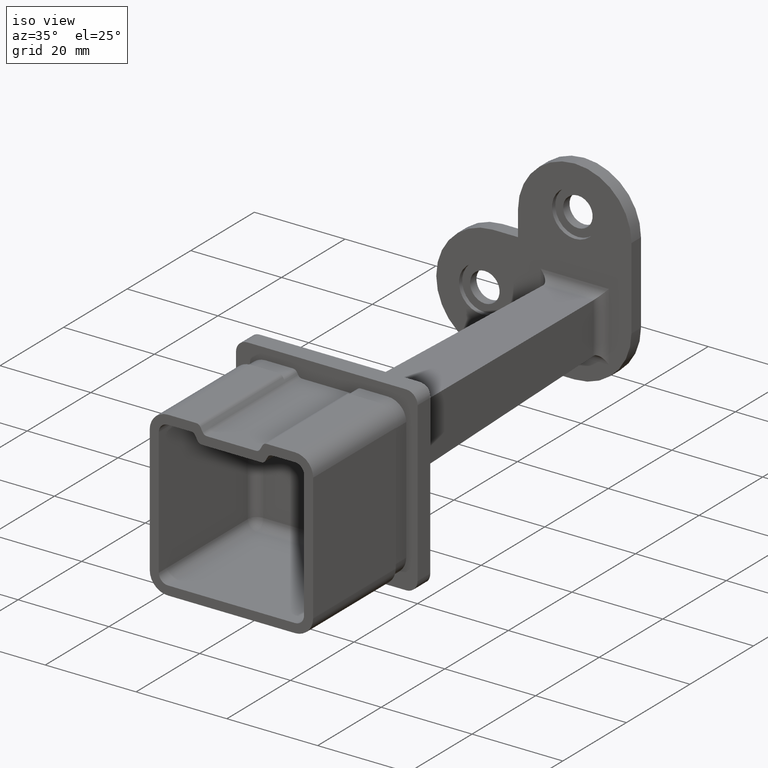
[diagram: clean part render]
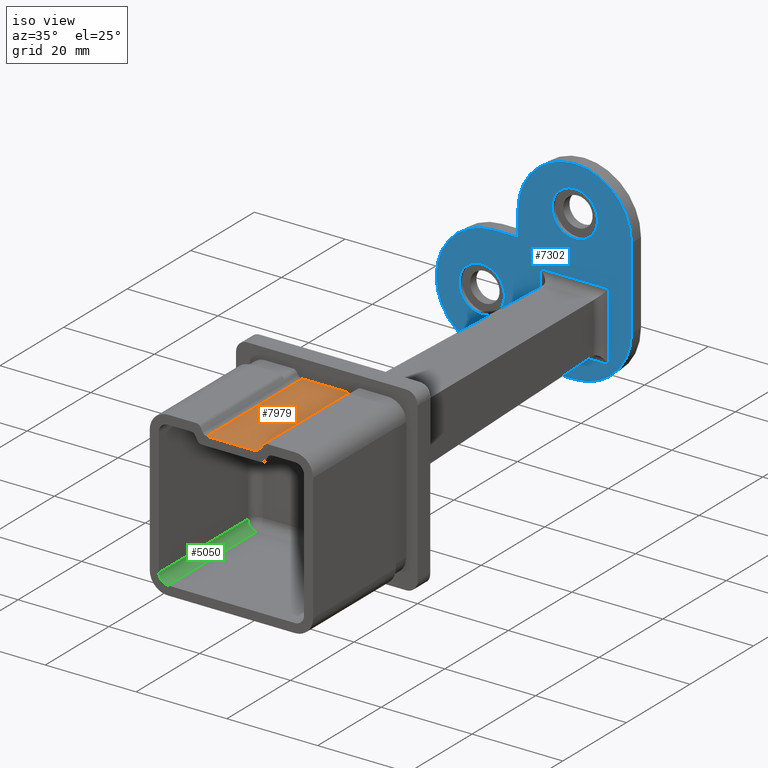
[diagram: same view with three faces highlighted in distinct colors, each labeled with its STEP entity id]
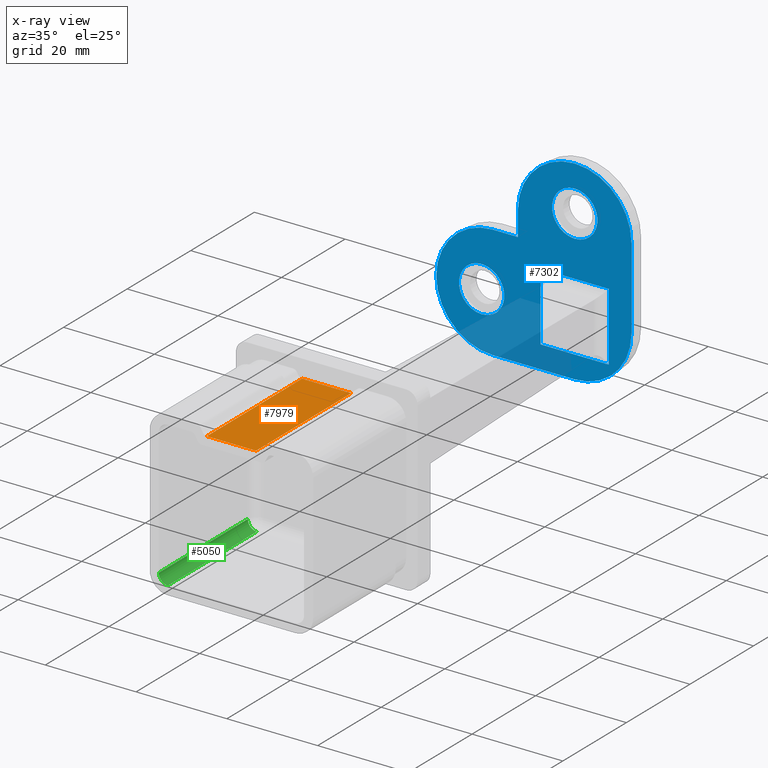
[diagram: x-ray of the same camera — body ghosted, the three highlighted faces saturated]
A machine part, iso view with three faces highlighted in distinct colors.
The next image is the same camera in x-ray (body ghosted, the three faces saturated) — at least one of them is partly hidden behind the body in this view.
Their STEP definitions:

[orange] entity #7979 — the highlighted planar face has unit normal (0, 0, -1).
#140 = CARTESIAN_POINT ( 'NONE',  ( 5.422649730810368496, 0.000000000000000000, 15.99999999999999289 ) ) ;
#1363 = CARTESIAN_POINT ( 'NONE',  ( -6.000000000000000000, 0.000000000000000000, 15.99999999999999289 ) ) ;
#1414 = VERTEX_POINT ( 'NONE', #10900 ) ;
#1571 = AXIS2_PLACEMENT_3D ( 'NONE', #1363, #5601, #7900 ) ;
#1747 = LINE ( 'NONE', #4558, #12858 ) ;
#2484 = VERTEX_POINT ( 'NONE', #13740 ) ;
#2993 = EDGE_LOOP ( 'NONE', ( #9598, #13184, #4276, #4719 ) ) ;
#3018 = VECTOR ( 'NONE', #9967, 1000.000000000000000 ) ;
#3031 = FACE_OUTER_BOUND ( 'NONE', #2993, .T. ) ;
#3477 = CARTESIAN_POINT ( 'NONE',  ( -6.000000000000000000, 0.000000000000000000, 15.99999999999999289 ) ) ;
#3705 = EDGE_CURVE ( 'NONE', #2484, #8252, #1747, .T. ) ;
#4276 = ORIENTED_EDGE ( 'NONE', *, *, #4718, .F. ) ;
#4558 = CARTESIAN_POINT ( 'NONE',  ( -6.000000000000000000, -30.00000000000000000, 15.99999999999999289 ) ) ;
#4718 = EDGE_CURVE ( 'NONE', #1414, #12880, #5878, .T. ) ;
#4719 = ORIENTED_EDGE ( 'NONE', *, *, #11653, .T. ) ;
#5601 = DIRECTION ( 'NONE',  ( 0.000000000000000000, 0.000000000000000000, -1.000000000000000000 ) ) ;
#5742 = DIRECTION ( 'NONE',  ( 1.000000000000000000, 0.000000000000000000, 0.000000000000000000 ) ) ;
#5878 = LINE ( 'NONE', #3477, #12512 ) ;
#7127 = VECTOR ( 'NONE', #11680, 1000.000000000000000 ) ;
#7900 = DIRECTION ( 'NONE',  ( -1.000000000000000000, 0.000000000000000000, -0.000000000000000000 ) ) ;
#7979 = ADVANCED_FACE ( 'NONE', ( #3031 ), #9808, .F. ) ;
#8252 = VERTEX_POINT ( 'NONE', #8510 ) ;
#8468 = CARTESIAN_POINT ( 'NONE',  ( 5.422649730810368496, 0.000000000000000000, 15.99999999999999289 ) ) ;
#8510 = CARTESIAN_POINT ( 'NONE',  ( 5.422649730810368496, -30.00000000000000000, 15.99999999999999289 ) ) ;
#9598 = ORIENTED_EDGE ( 'NONE', *, *, #3705, .T. ) ;
#9730 = EDGE_CURVE ( 'NONE', #8252, #12880, #9796, .T. ) ;
#9796 = LINE ( 'NONE', #140, #3018 ) ;
#9808 = PLANE ( 'NONE',  #1571 ) ;
#9967 = DIRECTION ( 'NONE',  ( -0.000000000000000000, 1.000000000000000000, -0.000000000000000000 ) ) ;
#10900 = CARTESIAN_POINT ( 'NONE',  ( -5.422649730810372048, 0.000000000000000000, 15.99999999999999289 ) ) ;
#11141 = DIRECTION ( 'NONE',  ( 1.000000000000000000, 0.000000000000000000, 0.000000000000000000 ) ) ;
#11653 = EDGE_CURVE ( 'NONE', #1414, #2484, #13210, .T. ) ;
#11680 = DIRECTION ( 'NONE',  ( 0.000000000000000000, -1.000000000000000000, 0.000000000000000000 ) ) ;
#12512 = VECTOR ( 'NONE', #5742, 1000.000000000000000 ) ;
#12858 = VECTOR ( 'NONE', #11141, 1000.000000000000000 ) ;
#12880 = VERTEX_POINT ( 'NONE', #8468 ) ;
#13184 = ORIENTED_EDGE ( 'NONE', *, *, #9730, .T. ) ;
#13210 = LINE ( 'NONE', #14057, #7127 ) ;
#13740 = CARTESIAN_POINT ( 'NONE',  ( -5.422649730810372048, -30.00000000000000000, 15.99999999999999289 ) ) ;
#14057 = CARTESIAN_POINT ( 'NONE',  ( -5.422649730810372048, -30.00000000000000000, 15.99999999999999289 ) ) ;

[blue] entity #7302 — the highlighted planar face has unit normal (0, 1, 0).
#72 = AXIS2_PLACEMENT_3D ( 'NONE', #12884, #3974, #3926 ) ;
#83 = ORIENTED_EDGE ( 'NONE', *, *, #12312, .F. ) ;
#204 = CARTESIAN_POINT ( 'NONE',  ( -30.50000000000000000, 78.00000000000000000, 12.50000000000000000 ) ) ;
#253 = DIRECTION ( 'NONE',  ( -0.000000000000000000, -0.000000000000000000, 1.000000000000000000 ) ) ;
#283 = LINE ( 'NONE', #5107, #7682 ) ;
#430 = EDGE_CURVE ( 'NONE', #8127, #4531, #11196, .T. ) ;
#443 = EDGE_CURVE ( 'NONE', #4295, #11036, #5955, .T. ) ;
#562 = EDGE_CURVE ( 'NONE', #12553, #3819, #5256, .T. ) ;
#687 = ORIENTED_EDGE ( 'NONE', *, *, #1431, .T. ) ;
#812 = EDGE_CURVE ( 'NONE', #12494, #4310, #8398, .T. ) ;
#821 = CARTESIAN_POINT ( 'NONE',  ( 0.000000000000000000, 78.00000000000000000, 0.000000000000000000 ) ) ;
#884 = DIRECTION ( 'NONE',  ( 1.000000000000000000, -0.000000000000000000, -0.000000000000000000 ) ) ;
#961 = VECTOR ( 'NONE', #4640, 1000.000000000000000 ) ;
#1178 = ORIENTED_EDGE ( 'NONE', *, *, #562, .T. ) ;
#1219 = ORIENTED_EDGE ( 'NONE', *, *, #7530, .T. ) ;
#1322 = EDGE_LOOP ( 'NONE', ( #9196, #10781, #1325, #687, #1178, #83, #11026, #6351, #7955 ) ) ;
#1325 = ORIENTED_EDGE ( 'NONE', *, *, #7785, .F. ) ;
#1431 = EDGE_CURVE ( 'NONE', #11379, #12553, #6107, .T. ) ;
#1459 = CARTESIAN_POINT ( 'NONE',  ( -7.541094094706287443, 78.00000000000000000, -7.541094094706287443 ) ) ;
#1485 = CARTESIAN_POINT ( 'NONE',  ( 0.000000000000000000, 78.00000000000000000, -12.50000000000000000 ) ) ;
#1548 = EDGE_CURVE ( 'NONE', #4531, #12494, #1788, .T. ) ;
#1561 = EDGE_LOOP ( 'NONE', ( #6674, #1219, #10680, #6866 ) ) ;
#1788 = LINE ( 'NONE', #4232, #9260 ) ;
#2313 = CARTESIAN_POINT ( 'NONE',  ( -7.541094094706287443, 78.00000000000000000, 0.000000000000000000 ) ) ;
#2337 = VECTOR ( 'NONE', #10842, 1000.000000000000000 ) ;
#2546 = CARTESIAN_POINT ( 'NONE',  ( 1.734723475976807094E-15, 78.00000000000000000, 18.00000000000000000 ) ) ;
#2548 = CARTESIAN_POINT ( 'NONE',  ( -12.50000000000000000, 78.00000000000000000, 12.50000000000000000 ) ) ;
#2581 = VERTEX_POINT ( 'NONE', #7683 ) ;
#3304 = CARTESIAN_POINT ( 'NONE',  ( -30.50000000000000000, 78.00000000000000000, 0.000000000000000000 ) ) ;
#3435 = CARTESIAN_POINT ( 'NONE',  ( 12.50000000000000178, 78.00000000000000000, 18.00000000000000355 ) ) ;
#3670 = VERTEX_POINT ( 'NONE', #6708 ) ;
#3699 = VECTOR ( 'NONE', #253, 1000.000000000000000 ) ;
#3808 = CARTESIAN_POINT ( 'NONE',  ( 0.000000000000000000, 78.00000000000000000, -7.541094094706287443 ) ) ;
#3819 = VERTEX_POINT ( 'NONE', #5823 ) ;
#3874 = AXIS2_PLACEMENT_3D ( 'NONE', #4403, #5520, #13307 ) ;
#3926 = DIRECTION ( 'NONE',  ( 0.000000000000000000, 0.000000000000000000, -1.000000000000000000 ) ) ;
#3933 = AXIS2_PLACEMENT_3D ( 'NONE', #2546, #5859, #13654 ) ;
#3974 = DIRECTION ( 'NONE',  ( 0.000000000000000000, -1.000000000000000000, 0.000000000000000000 ) ) ;
#4018 = CARTESIAN_POINT ( 'NONE',  ( -20.49999999999999645, 78.00000000000000000, 0.000000000000000000 ) ) ;
#4097 = DIRECTION ( 'NONE',  ( 0.000000000000000000, -0.000000000000000000, 1.000000000000000000 ) ) ;
#4107 = EDGE_CURVE ( 'NONE', #4295, #4112, #9734, .T. ) ;
#4112 = VERTEX_POINT ( 'NONE', #3304 ) ;
#4232 = CARTESIAN_POINT ( 'NONE',  ( 0.000000000000000000, 78.00000000000000000, 7.541094094706285667 ) ) ;
#4295 = VERTEX_POINT ( 'NONE', #12575 ) ;
#4310 = VERTEX_POINT ( 'NONE', #7031 ) ;
#4403 = CARTESIAN_POINT ( 'NONE',  ( -18.00000000000000000, 78.00000000000000000, 0.000000000000000000 ) ) ;
#4531 = VERTEX_POINT ( 'NONE', #9806 ) ;
#4559 = DIRECTION ( 'NONE',  ( 0.000000000000000000, 0.000000000000000000, 1.000000000000000000 ) ) ;
#4640 = DIRECTION ( 'NONE',  ( 1.000000000000000000, 0.000000000000000000, 0.000000000000000000 ) ) ;
#4734 = CARTESIAN_POINT ( 'NONE',  ( -18.00000000000000000, 78.00000000000000000, -12.50000000000000000 ) ) ;
#4865 = ORIENTED_EDGE ( 'NONE', *, *, #11931, .F. ) ;
#4966 = FACE_BOUND ( 'NONE', #1561, .T. ) ;
#5107 = CARTESIAN_POINT ( 'NONE',  ( 12.50000000000000000, 78.00000000000000000, -12.50000000000000000 ) ) ;
#5141 = EDGE_CURVE ( 'NONE', #2581, #2581, #11778, .T. ) ;
#5256 = CIRCLE ( 'NONE', #3933, 12.50000000000000000 ) ;
#5333 = CIRCLE ( 'NONE', #13873, 12.50000000000000000 ) ;
#5468 = VERTEX_POINT ( 'NONE', #4734 ) ;
#5520 = DIRECTION ( 'NONE',  ( -0.000000000000000000, -1.000000000000000000, -0.000000000000000000 ) ) ;
#5823 = CARTESIAN_POINT ( 'NONE',  ( -12.49999999999999822, 78.00000000000000000, 18.00000000000000355 ) ) ;
#5852 = VERTEX_POINT ( 'NONE', #10885 ) ;
#5859 = DIRECTION ( 'NONE',  ( -0.000000000000000000, -1.000000000000000000, -0.000000000000000000 ) ) ;
#5948 = DIRECTION ( 'NONE',  ( -1.000000000000000000, -0.000000000000000000, -0.000000000000000000 ) ) ;
#5955 = LINE ( 'NONE', #204, #961 ) ;
#6107 = CIRCLE ( 'NONE', #6848, 12.50000000000000000 ) ;
#6183 = FACE_OUTER_BOUND ( 'NONE', #1322, .T. ) ;
#6252 = DIRECTION ( 'NONE',  ( 0.000000000000000000, 0.000000000000000000, -1.000000000000000000 ) ) ;
#6351 = ORIENTED_EDGE ( 'NONE', *, *, #4107, .T. ) ;
#6593 = CIRCLE ( 'NONE', #72, 5.000000000000000888 ) ;
#6674 = ORIENTED_EDGE ( 'NONE', *, *, #812, .T. ) ;
#6708 = CARTESIAN_POINT ( 'NONE',  ( 12.50000000000000178, 78.00000000000000000, -1.734723475976807094E-15 ) ) ;
#6813 = DIRECTION ( 'NONE',  ( -0.000000000000000000, -1.000000000000000000, -0.000000000000000000 ) ) ;
#6848 = AXIS2_PLACEMENT_3D ( 'NONE', #11194, #6813, #4559 ) ;
#6852 = EDGE_CURVE ( 'NONE', #9054, #3670, #5333, .T. ) ;
#6866 = ORIENTED_EDGE ( 'NONE', *, *, #1548, .T. ) ;
#6958 = VECTOR ( 'NONE', #8022, 1000.000000000000000 ) ;
#7031 = CARTESIAN_POINT ( 'NONE',  ( 7.541094094706285667, 78.00000000000000000, -7.541094094706287443 ) ) ;
#7294 = CARTESIAN_POINT ( 'NONE',  ( -18.00000000000000000, 78.00000000000000000, 0.000000000000000000 ) ) ;
#7302 = ADVANCED_FACE ( 'NONE', ( #4966, #8822, #10049, #6183 ), #9623, .F. ) ;
#7408 = LINE ( 'NONE', #13881, #12971 ) ;
#7436 = AXIS2_PLACEMENT_3D ( 'NONE', #4018, #12924, #6252 ) ;
#7530 = EDGE_CURVE ( 'NONE', #4310, #8127, #9518, .T. ) ;
#7662 = EDGE_CURVE ( 'NONE', #9054, #5468, #7408, .T. ) ;
#7682 = VECTOR ( 'NONE', #12903, 1000.000000000000000 ) ;
#7683 = CARTESIAN_POINT ( 'NONE',  ( -20.49999999999999645, 78.00000000000000000, -5.000000000000000000 ) ) ;
#7785 = EDGE_CURVE ( 'NONE', #11379, #3670, #283, .T. ) ;
#7955 = ORIENTED_EDGE ( 'NONE', *, *, #10104, .T. ) ;
#8022 = DIRECTION ( 'NONE',  ( 1.927470528863119049E-16, 0.000000000000000000, 1.000000000000000000 ) ) ;
#8127 = VERTEX_POINT ( 'NONE', #1459 ) ;
#8398 = LINE ( 'NONE', #9783, #2337 ) ;
#8538 = CARTESIAN_POINT ( 'NONE',  ( 0.000000000000000000, 78.00000000000000000, 0.000000000000000000 ) ) ;
#8561 = DIRECTION ( 'NONE',  ( -0.000000000000000000, -1.000000000000000000, -0.000000000000000000 ) ) ;
#8793 = CARTESIAN_POINT ( 'NONE',  ( 1.734723475976807094E-15, 78.00000000000000000, 30.50000000000000000 ) ) ;
#8822 = FACE_BOUND ( 'NONE', #12804, .T. ) ;
#8882 = EDGE_LOOP ( 'NONE', ( #4865 ) ) ;
#9054 = VERTEX_POINT ( 'NONE', #1485 ) ;
#9174 = VECTOR ( 'NONE', #13741, 1000.000000000000000 ) ;
#9196 = ORIENTED_EDGE ( 'NONE', *, *, #7662, .F. ) ;
#9257 = ORIENTED_EDGE ( 'NONE', *, *, #5141, .F. ) ;
#9260 = VECTOR ( 'NONE', #884, 1000.000000000000000 ) ;
#9518 = LINE ( 'NONE', #3808, #9174 ) ;
#9561 = CARTESIAN_POINT ( 'NONE',  ( -12.50000000000000000, 78.00000000000000000, 12.50000000000000000 ) ) ;
#9623 = PLANE ( 'NONE',  #14332 ) ;
#9734 = CIRCLE ( 'NONE', #3874, 12.50000000000000000 ) ;
#9740 = LINE ( 'NONE', #2548, #6958 ) ;
#9783 = CARTESIAN_POINT ( 'NONE',  ( 7.541094094706285667, 78.00000000000000000, 0.000000000000000000 ) ) ;
#9806 = CARTESIAN_POINT ( 'NONE',  ( -7.541094094706287443, 78.00000000000000000, 7.541094094706285667 ) ) ;
#10049 = FACE_BOUND ( 'NONE', #8882, .T. ) ;
#10104 = EDGE_CURVE ( 'NONE', #4112, #5468, #10481, .T. ) ;
#10481 = CIRCLE ( 'NONE', #12571, 12.50000000000000000 ) ;
#10680 = ORIENTED_EDGE ( 'NONE', *, *, #430, .T. ) ;
#10733 = DIRECTION ( 'NONE',  ( 0.000000000000000000, 1.000000000000000000, 0.000000000000000000 ) ) ;
#10781 = ORIENTED_EDGE ( 'NONE', *, *, #6852, .T. ) ;
#10842 = DIRECTION ( 'NONE',  ( -0.000000000000000000, 0.000000000000000000, -1.000000000000000000 ) ) ;
#10885 = CARTESIAN_POINT ( 'NONE',  ( 2.510525938252074087E-15, 78.00000000000000000, 15.49999999999999645 ) ) ;
#10946 = DIRECTION ( 'NONE',  ( 0.000000000000000000, 0.000000000000000000, 1.000000000000000000 ) ) ;
#11026 = ORIENTED_EDGE ( 'NONE', *, *, #443, .F. ) ;
#11036 = VERTEX_POINT ( 'NONE', #9561 ) ;
#11194 = CARTESIAN_POINT ( 'NONE',  ( 2.460886791501982313E-15, 78.00000000000000000, 18.00000000000000355 ) ) ;
#11196 = LINE ( 'NONE', #2313, #3699 ) ;
#11379 = VERTEX_POINT ( 'NONE', #3435 ) ;
#11778 = CIRCLE ( 'NONE', #7436, 5.000000000000000000 ) ;
#11869 = DIRECTION ( 'NONE',  ( 0.000000000000000000, 0.000000000000000000, 1.000000000000000000 ) ) ;
#11931 = EDGE_CURVE ( 'NONE', #5852, #5852, #6593, .T. ) ;
#12312 = EDGE_CURVE ( 'NONE', #11036, #3819, #9740, .T. ) ;
#12494 = VERTEX_POINT ( 'NONE', #14313 ) ;
#12553 = VERTEX_POINT ( 'NONE', #8793 ) ;
#12571 = AXIS2_PLACEMENT_3D ( 'NONE', #7294, #13917, #11869 ) ;
#12575 = CARTESIAN_POINT ( 'NONE',  ( -18.00000000000000000, 78.00000000000000000, 12.50000000000000000 ) ) ;
#12804 = EDGE_LOOP ( 'NONE', ( #9257 ) ) ;
#12884 = CARTESIAN_POINT ( 'NONE',  ( 2.510525938252074087E-15, 78.00000000000000000, 20.49999999999999645 ) ) ;
#12903 = DIRECTION ( 'NONE',  ( -8.068481283613057027E-17, -0.000000000000000000, -1.000000000000000000 ) ) ;
#12924 = DIRECTION ( 'NONE',  ( 0.000000000000000000, -1.000000000000000000, 0.000000000000000000 ) ) ;
#12971 = VECTOR ( 'NONE', #5948, 1000.000000000000000 ) ;
#13307 = DIRECTION ( 'NONE',  ( 0.000000000000000000, 0.000000000000000000, 1.000000000000000000 ) ) ;
#13654 = DIRECTION ( 'NONE',  ( 0.000000000000000000, 0.000000000000000000, 1.000000000000000000 ) ) ;
#13741 = DIRECTION ( 'NONE',  ( -1.000000000000000000, 0.000000000000000000, -0.000000000000000000 ) ) ;
#13873 = AXIS2_PLACEMENT_3D ( 'NONE', #821, #8561, #10946 ) ;
#13881 = CARTESIAN_POINT ( 'NONE',  ( -30.50000000000000000, 78.00000000000000000, -12.50000000000000000 ) ) ;
#13917 = DIRECTION ( 'NONE',  ( -0.000000000000000000, -1.000000000000000000, -0.000000000000000000 ) ) ;
#14313 = CARTESIAN_POINT ( 'NONE',  ( 7.541094094706285667, 78.00000000000000000, 7.541094094706285667 ) ) ;
#14332 = AXIS2_PLACEMENT_3D ( 'NONE', #8538, #10733, #4097 ) ;

[green] entity #5050 — the highlighted cylindrical surface (edge-blend (fillet) strip) has radius 2 mm, axis along (0, 1, 0).
#1098 = EDGE_CURVE ( 'NONE', #7751, #5932, #4721, .T. ) ;
#1220 = CYLINDRICAL_SURFACE ( 'NONE', #13297, 2.000000000000000000 ) ;
#1467 = ORIENTED_EDGE ( 'NONE', *, *, #2988, .F. ) ;
#1794 = CARTESIAN_POINT ( 'NONE',  ( -13.99999999999999822, -30.00000000000000000, -13.99999999999999822 ) ) ;
#1910 = ORIENTED_EDGE ( 'NONE', *, *, #1098, .F. ) ;
#2155 = EDGE_CURVE ( 'NONE', #5448, #7751, #14113, .T. ) ;
#2321 = VECTOR ( 'NONE', #14322, 1000.000000000000000 ) ;
#2619 = DIRECTION ( 'NONE',  ( -0.000000000000000000, 1.000000000000000000, -0.000000000000000000 ) ) ;
#2672 = CIRCLE ( 'NONE', #14220, 2.000000000000000000 ) ;
#2988 = EDGE_CURVE ( 'NONE', #5932, #11288, #11824, .T. ) ;
#3307 = CARTESIAN_POINT ( 'NONE',  ( -13.99999999999999822, -30.00000000000000000, -15.99999999999999645 ) ) ;
#4721 = CIRCLE ( 'NONE', #13272, 2.000000000000001776 ) ;
#5050 = ADVANCED_FACE ( 'NONE', ( #5343 ), #1220, .F. ) ;
#5171 = DIRECTION ( 'NONE',  ( 0.000000000000000000, 0.000000000000000000, 1.000000000000000000 ) ) ;
#5343 = FACE_OUTER_BOUND ( 'NONE', #14179, .T. ) ;
#5448 = VERTEX_POINT ( 'NONE', #9382 ) ;
#5777 = ORIENTED_EDGE ( 'NONE', *, *, #9176, .T. ) ;
#5932 = VERTEX_POINT ( 'NONE', #14153 ) ;
#6205 = DIRECTION ( 'NONE',  ( 0.000000000000000000, 1.000000000000000000, 0.000000000000000000 ) ) ;
#7214 = DIRECTION ( 'NONE',  ( -0.000000000000000000, 1.000000000000000000, -0.000000000000000000 ) ) ;
#7571 = DIRECTION ( 'NONE',  ( 0.000000000000000000, 1.000000000000000000, 0.000000000000000000 ) ) ;
#7751 = VERTEX_POINT ( 'NONE', #10724 ) ;
#9176 = EDGE_CURVE ( 'NONE', #5448, #11288, #2672, .T. ) ;
#9382 = CARTESIAN_POINT ( 'NONE',  ( -13.99999999999999822, -2.000000000000001776, -15.99999999999999645 ) ) ;
#9564 = DIRECTION ( 'NONE',  ( 0.000000000000000000, 0.000000000000000000, -1.000000000000000000 ) ) ;
#10627 = VECTOR ( 'NONE', #2619, 1000.000000000000000 ) ;
#10724 = CARTESIAN_POINT ( 'NONE',  ( -13.99999999999999822, -30.00000000000000000, -15.99999999999999645 ) ) ;
#11145 = ORIENTED_EDGE ( 'NONE', *, *, #2155, .F. ) ;
#11288 = VERTEX_POINT ( 'NONE', #12291 ) ;
#11623 = DIRECTION ( 'NONE',  ( 0.000000000000000000, 0.000000000000000000, 1.000000000000000000 ) ) ;
#11824 = LINE ( 'NONE', #12664, #10627 ) ;
#11899 = CARTESIAN_POINT ( 'NONE',  ( -13.99999999999999822, -2.000000000000000000, -13.99999999999999822 ) ) ;
#12291 = CARTESIAN_POINT ( 'NONE',  ( -16.00000000000000000, -2.000000000000000000, -13.99999999999999822 ) ) ;
#12558 = CARTESIAN_POINT ( 'NONE',  ( -13.99999999999999822, 0.000000000000000000, -13.99999999999999822 ) ) ;
#12664 = CARTESIAN_POINT ( 'NONE',  ( -16.00000000000000000, 0.000000000000000000, -13.99999999999999822 ) ) ;
#13272 = AXIS2_PLACEMENT_3D ( 'NONE', #1794, #7214, #9564 ) ;
#13297 = AXIS2_PLACEMENT_3D ( 'NONE', #12558, #6205, #11623 ) ;
#14113 = LINE ( 'NONE', #3307, #2321 ) ;
#14153 = CARTESIAN_POINT ( 'NONE',  ( -16.00000000000000000, -30.00000000000000000, -13.99999999999999822 ) ) ;
#14179 = EDGE_LOOP ( 'NONE', ( #11145, #5777, #1467, #1910 ) ) ;
#14220 = AXIS2_PLACEMENT_3D ( 'NONE', #11899, #7571, #5171 ) ;
#14322 = DIRECTION ( 'NONE',  ( 0.000000000000000000, -1.000000000000000000, 0.000000000000000000 ) ) ;